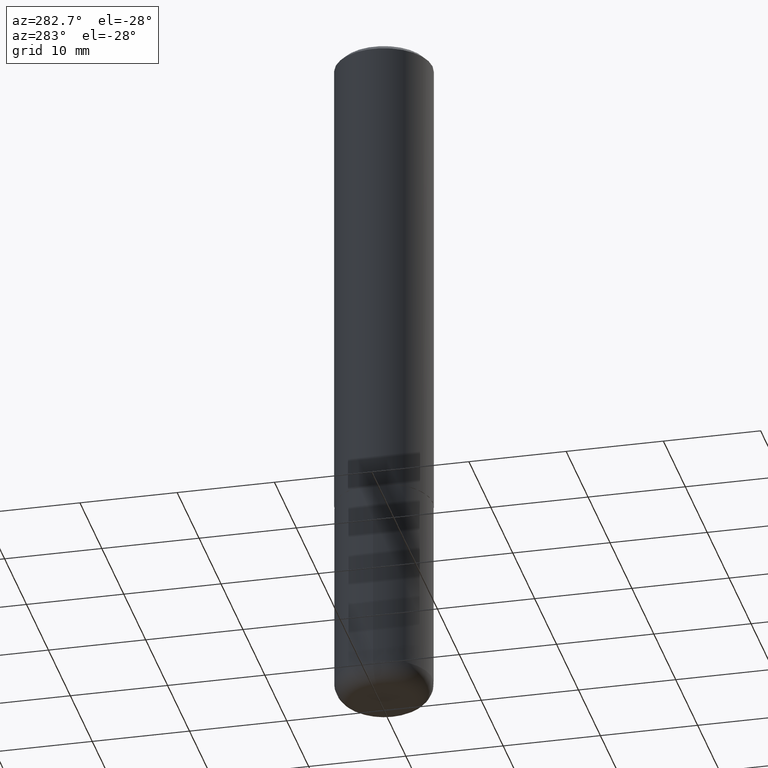
[diagram: clean part render]
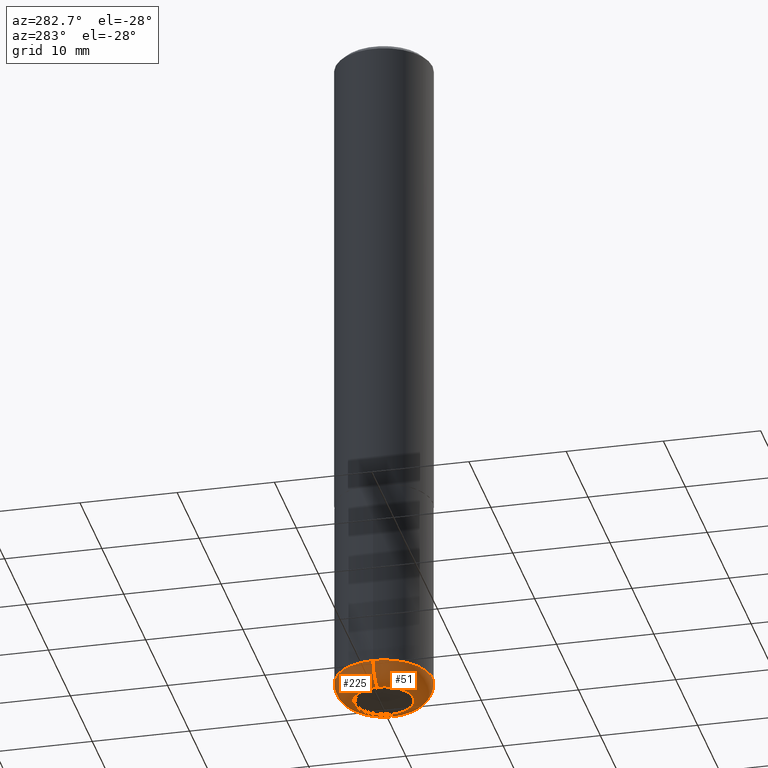
[diagram: same view with one multi-face feature highlighted, each face labeled with its STEP entity id]
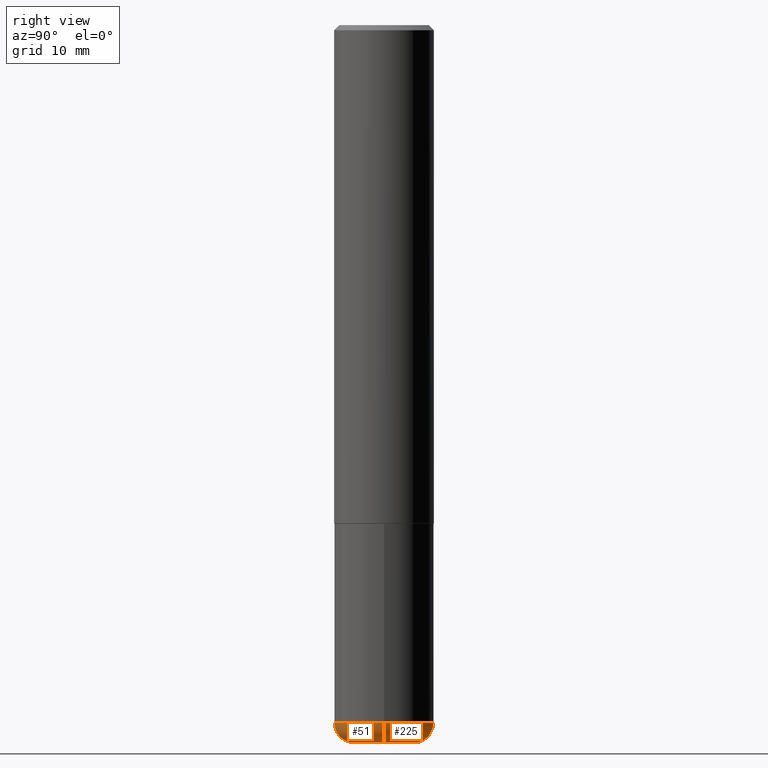
[diagram: same view with one multi-face feature highlighted, each face labeled with its STEP entity id]
A machine part, auxiliary view. The highlighted faces form ONE feature: a constant-radius fillet chain: 2 tangent blend faces with common blend radius 1.999 mm. The faces share edges in the B-rep.
A second angle (right view) of the same feature is appended — it is thin or edge-on in the first view.
Their STEP definitions:
[1] entity #51 (Torus):
#35 = CARTESIAN_POINT ( 'NONE',  ( 0.1181500000000000189, -1.072199004345341108E-14, -2.834599999999999120 ) ) ;
#44 = ORIENTED_EDGE ( 'NONE', *, *, #360, .T. ) ;
#51 = ADVANCED_FACE ( 'NONE', ( #62 ), #168, .T. ) ;
#55 = VERTEX_POINT ( 'NONE', #319 ) ;
#62 = FACE_OUTER_BOUND ( 'NONE', #351, .T. ) ;
#68 = DIRECTION ( 'NONE',  ( 7.105427357601001859E-15, 1.000000000000000000, -3.491481338843145583E-15 ) ) ;
#91 = DIRECTION ( 'NONE',  ( -2.445468806185136597E-29, 3.491481338843145583E-15, 1.000000000000000000 ) ) ;
#94 = EDGE_CURVE ( 'NONE', #368, #340, #154, .T. ) ;
#97 = CARTESIAN_POINT ( 'NONE',  ( 6.739467482965618232E-29, -9.622173421717824390E-15, -2.755900000000000016 ) ) ;
#121 = AXIS2_PLACEMENT_3D ( 'NONE', #166, #68, #386 ) ;
#128 = DIRECTION ( 'NONE',  ( 1.000000000000000000, -6.982962677686265922E-15, 0.000000000000000000 ) ) ;
#134 = DIRECTION ( 'NONE',  ( -2.445468806185136597E-29, 3.491481338843145583E-15, 1.000000000000000000 ) ) ;
#154 = CIRCLE ( 'NONE', #379, 0.07869999999999970075 ) ;
#166 = CARTESIAN_POINT ( 'NONE',  ( -0.1181500000000000050, -8.782667179417266182E-15, -2.755900000000000016 ) ) ;
#168 = TOROIDAL_SURFACE ( 'NONE', #194, 0.1181500000000000050, 0.07869999999999967299 ) ;
#174 = CIRCLE ( 'NONE', #121, 0.07869999999999970075 ) ;
#194 = AXIS2_PLACEMENT_3D ( 'NONE', #261, #207, #325 ) ;
#196 = VERTEX_POINT ( 'NONE', #366 ) ;
#205 = CIRCLE ( 'NONE', #359, 0.1968500000000000250 ) ;
#207 = DIRECTION ( 'NONE',  ( -2.445468806185136597E-29, 3.491481338843145583E-15, 1.000000000000000000 ) ) ;
#209 = DIRECTION ( 'NONE',  ( -6.982962677686266711E-15, -1.000000000000000000, 3.491481338843145583E-15 ) ) ;
#212 = AXIS2_PLACEMENT_3D ( 'NONE', #284, #91, #128 ) ;
#217 = ORIENTED_EDGE ( 'NONE', *, *, #374, .F. ) ;
#253 = ORIENTED_EDGE ( 'NONE', *, *, #94, .T. ) ;
#261 = CARTESIAN_POINT ( 'NONE',  ( 6.739467482965618232E-29, -9.622173421717824390E-15, -2.755900000000000016 ) ) ;
#266 = CIRCLE ( 'NONE', #212, 0.1181500000000000189 ) ;
#284 = CARTESIAN_POINT ( 'NONE',  ( 6.931925878012386396E-29, -9.896953003084777729E-15, -2.834599999999999120 ) ) ;
#315 = CARTESIAN_POINT ( 'NONE',  ( 0.1968499999999998307, -1.099676962482036600E-14, -2.755900000000000016 ) ) ;
#319 = CARTESIAN_POINT ( 'NONE',  ( -0.1968499999999998307, -8.223470046374068969E-15, -2.755900000000000016 ) ) ;
#325 = DIRECTION ( 'NONE',  ( 1.000000000000000000, -6.982962677686269077E-15, 4.883557194083113462E-29 ) ) ;
#326 = CARTESIAN_POINT ( 'NONE',  ( 0.1181500000000000050, -1.044721046208645774E-14, -2.755900000000000016 ) ) ;
#334 = ORIENTED_EDGE ( 'NONE', *, *, #408, .F. ) ;
#340 = VERTEX_POINT ( 'NONE', #315 ) ;
#351 = EDGE_LOOP ( 'NONE', ( #217, #44, #253, #334 ) ) ;
#359 = AXIS2_PLACEMENT_3D ( 'NONE', #97, #134, #388 ) ;
#360 = EDGE_CURVE ( 'NONE', #196, #368, #266, .T. ) ;
#361 = DIRECTION ( 'NONE',  ( 1.000000000000000000, -6.982962677686271444E-15, 0.000000000000000000 ) ) ;
#366 = CARTESIAN_POINT ( 'NONE',  ( -0.1181500000000000189, -8.640458403579145034E-15, -2.834599999999999120 ) ) ;
#368 = VERTEX_POINT ( 'NONE', #35 ) ;
#374 = EDGE_CURVE ( 'NONE', #196, #55, #174, .T. ) ;
#379 = AXIS2_PLACEMENT_3D ( 'NONE', #326, #209, #361 ) ;
#386 = DIRECTION ( 'NONE',  ( -1.000000000000000000, 7.105427357600995548E-15, 0.000000000000000000 ) ) ;
#388 = DIRECTION ( 'NONE',  ( 1.000000000000000000, -6.982962677686267499E-15, 0.000000000000000000 ) ) ;
#408 = EDGE_CURVE ( 'NONE', #55, #340, #205, .T. ) ;
[2] entity #225 (Torus):
#9 = ORIENTED_EDGE ( 'NONE', *, *, #80, .F. ) ;
#22 = AXIS2_PLACEMENT_3D ( 'NONE', #262, #392, #241 ) ;
#35 = CARTESIAN_POINT ( 'NONE',  ( 0.1181500000000000189, -1.072199004345341108E-14, -2.834599999999999120 ) ) ;
#55 = VERTEX_POINT ( 'NONE', #319 ) ;
#64 = EDGE_LOOP ( 'NONE', ( #178, #345, #9, #142 ) ) ;
#66 = DIRECTION ( 'NONE',  ( 1.000000000000000000, -6.982962677686269077E-15, 4.883557194083113462E-29 ) ) ;
#68 = DIRECTION ( 'NONE',  ( 7.105427357601001859E-15, 1.000000000000000000, -3.491481338843145583E-15 ) ) ;
#80 = EDGE_CURVE ( 'NONE', #340, #55, #339, .T. ) ;
#88 = DIRECTION ( 'NONE',  ( -2.445468806185136597E-29, 3.491481338843145583E-15, 1.000000000000000000 ) ) ;
#94 = EDGE_CURVE ( 'NONE', #368, #340, #154, .T. ) ;
#121 = AXIS2_PLACEMENT_3D ( 'NONE', #166, #68, #386 ) ;
#125 = CARTESIAN_POINT ( 'NONE',  ( 6.739467482965618232E-29, -9.622173421717824390E-15, -2.755900000000000016 ) ) ;
#142 = ORIENTED_EDGE ( 'NONE', *, *, #94, .F. ) ;
#154 = CIRCLE ( 'NONE', #379, 0.07869999999999970075 ) ;
#166 = CARTESIAN_POINT ( 'NONE',  ( -0.1181500000000000050, -8.782667179417266182E-15, -2.755900000000000016 ) ) ;
#174 = CIRCLE ( 'NONE', #121, 0.07869999999999970075 ) ;
#178 = ORIENTED_EDGE ( 'NONE', *, *, #307, .T. ) ;
#185 = FACE_OUTER_BOUND ( 'NONE', #64, .T. ) ;
#196 = VERTEX_POINT ( 'NONE', #366 ) ;
#209 = DIRECTION ( 'NONE',  ( -6.982962677686266711E-15, -1.000000000000000000, 3.491481338843145583E-15 ) ) ;
#225 = ADVANCED_FACE ( 'NONE', ( #185 ), #294, .T. ) ;
#241 = DIRECTION ( 'NONE',  ( 1.000000000000000000, -6.982962677686267499E-15, 0.000000000000000000 ) ) ;
#255 = CARTESIAN_POINT ( 'NONE',  ( 6.931925878012386396E-29, -9.896953003084777729E-15, -2.834599999999999120 ) ) ;
#262 = CARTESIAN_POINT ( 'NONE',  ( 6.739467482965618232E-29, -9.622173421717824390E-15, -2.755900000000000016 ) ) ;
#294 = TOROIDAL_SURFACE ( 'NONE', #410, 0.1181500000000000050, 0.07869999999999967299 ) ;
#307 = EDGE_CURVE ( 'NONE', #368, #196, #391, .T. ) ;
#315 = CARTESIAN_POINT ( 'NONE',  ( 0.1968499999999998307, -1.099676962482036600E-14, -2.755900000000000016 ) ) ;
#318 = DIRECTION ( 'NONE',  ( 1.000000000000000000, -6.982962677686265922E-15, 0.000000000000000000 ) ) ;
#319 = CARTESIAN_POINT ( 'NONE',  ( -0.1968499999999998307, -8.223470046374068969E-15, -2.755900000000000016 ) ) ;
#326 = CARTESIAN_POINT ( 'NONE',  ( 0.1181500000000000050, -1.044721046208645774E-14, -2.755900000000000016 ) ) ;
#339 = CIRCLE ( 'NONE', #22, 0.1968500000000000250 ) ;
#340 = VERTEX_POINT ( 'NONE', #315 ) ;
#345 = ORIENTED_EDGE ( 'NONE', *, *, #374, .T. ) ;
#353 = AXIS2_PLACEMENT_3D ( 'NONE', #255, #381, #318 ) ;
#361 = DIRECTION ( 'NONE',  ( 1.000000000000000000, -6.982962677686271444E-15, 0.000000000000000000 ) ) ;
#366 = CARTESIAN_POINT ( 'NONE',  ( -0.1181500000000000189, -8.640458403579145034E-15, -2.834599999999999120 ) ) ;
#368 = VERTEX_POINT ( 'NONE', #35 ) ;
#374 = EDGE_CURVE ( 'NONE', #196, #55, #174, .T. ) ;
#379 = AXIS2_PLACEMENT_3D ( 'NONE', #326, #209, #361 ) ;
#381 = DIRECTION ( 'NONE',  ( -2.445468806185136597E-29, 3.491481338843145583E-15, 1.000000000000000000 ) ) ;
#386 = DIRECTION ( 'NONE',  ( -1.000000000000000000, 7.105427357600995548E-15, 0.000000000000000000 ) ) ;
#391 = CIRCLE ( 'NONE', #353, 0.1181500000000000189 ) ;
#392 = DIRECTION ( 'NONE',  ( -2.445468806185136597E-29, 3.491481338843145583E-15, 1.000000000000000000 ) ) ;
#410 = AXIS2_PLACEMENT_3D ( 'NONE', #125, #88, #66 ) ;